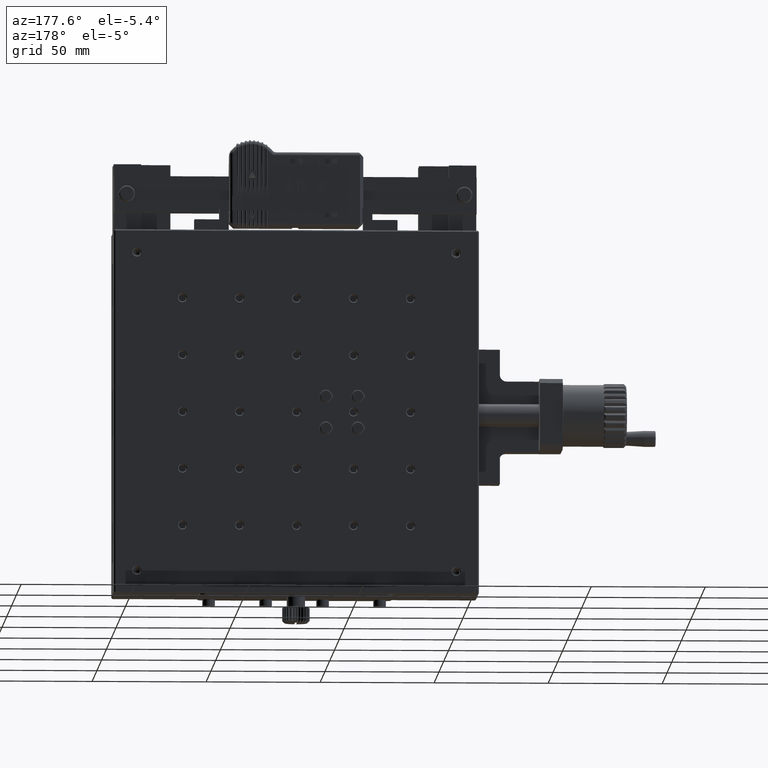
[diagram: clean part render]
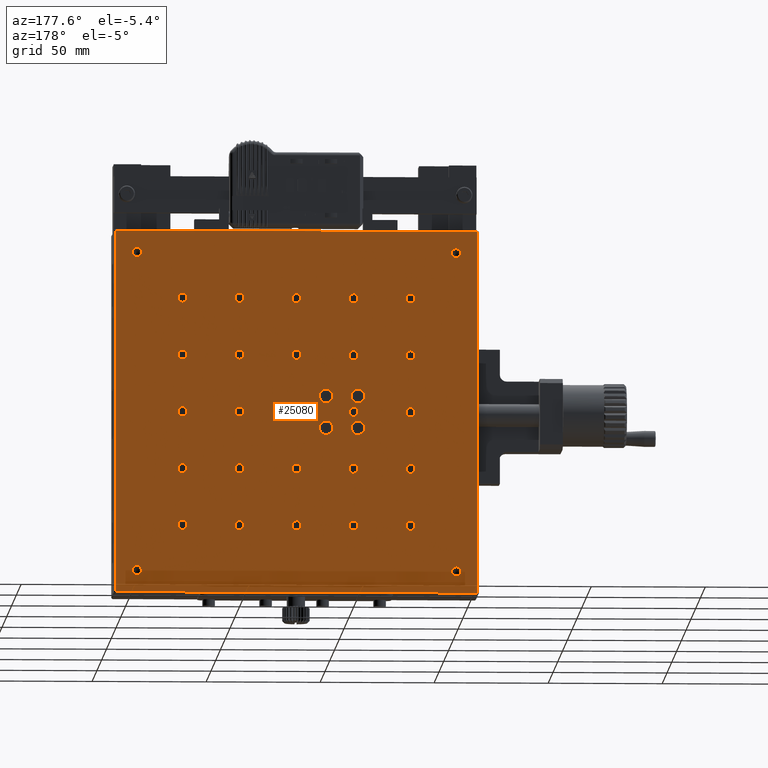
[diagram: same view with one face highlighted and labeled with its STEP entity id]
A machine part, auxiliary view. The second image highlights one B-rep face of the part: STEP entity #25080.
In plain terms, the highlighted planar face has unit normal (0, 1, 0).
Its self-contained STEP definition (entity closure, byte-faithful):
#83 = FACE_BOUND ( 'NONE', #10148, .T. ) ;
#90 = DIRECTION ( 'NONE',  ( 0.000000000000000000, 0.000000000000000000, 1.000000000000000000 ) ) ;
#546 = ORIENTED_EDGE ( 'NONE', *, *, #4016, .T. ) ;
#677 = VERTEX_POINT ( 'NONE', #42983 ) ;
#756 = CARTESIAN_POINT ( 'NONE',  ( -150.0000000000000000, 30.00000000000545697, 71.99999999988904165 ) ) ;
#1041 = AXIS2_PLACEMENT_3D ( 'NONE', #48596, #47990, #58320 ) ;
#1106 = CARTESIAN_POINT ( 'NONE',  ( -105.0000000000000000, 29.99999999994861355, 25.00000000000000000 ) ) ;
#1156 = ORIENTED_EDGE ( 'NONE', *, *, #25231, .T. ) ;
#1373 = DIRECTION ( 'NONE',  ( 0.000000000000000000, -1.000000000000000000, -0.000000000000000000 ) ) ;
#1707 = ORIENTED_EDGE ( 'NONE', *, *, #45831, .T. ) ;
#1868 = EDGE_CURVE ( 'NONE', #43418, #43418, #49684, .T. ) ;
#1989 = LINE ( 'NONE', #2591, #36957 ) ;
#2008 = LINE ( 'NONE', #21120, #16052 ) ;
#2197 = CIRCLE ( 'NONE', #26202, 2.000000000009549694 ) ;
#2447 = CARTESIAN_POINT ( 'NONE',  ( -107.0000000000000000, 30.00000000000000000, 10.00000000000000000 ) ) ;
#2590 = CARTESIAN_POINT ( 'NONE',  ( -55.00000000000000000, 30.00000000000545697, -48.00000000000181899 ) ) ;
#2591 = CARTESIAN_POINT ( 'NONE',  ( -0.5000000000000004441, 30.00000000000000000, -80.00000000000000000 ) ) ;
#2702 = CARTESIAN_POINT ( 'NONE',  ( -55.00000000000000000, 30.00000000000545697, 50.00000000000000000 ) ) ;
#3053 = ORIENTED_EDGE ( 'NONE', *, *, #45288, .T. ) ;
#3080 = VERTEX_POINT ( 'NONE', #40975 ) ;
#3086 = CARTESIAN_POINT ( 'NONE',  ( -93.00000000000000000, 30.00000000000000000, -7.000000000000000000 ) ) ;
#3123 = ORIENTED_EDGE ( 'NONE', *, *, #55918, .T. ) ;
#3169 = DIRECTION ( 'NONE',  ( -0.000000000000000000, -1.000000000000000000, -0.000000000000000000 ) ) ;
#3382 = ORIENTED_EDGE ( 'NONE', *, *, #28668, .T. ) ;
#3550 = EDGE_LOOP ( 'NONE', ( #8751 ) ) ;
#3921 = DIRECTION ( 'NONE',  ( 0.000000000000000000, 0.000000000000000000, 1.000000000000000000 ) ) ;
#3946 = VERTEX_POINT ( 'NONE', #28791 ) ;
#4016 = EDGE_CURVE ( 'NONE', #19900, #19900, #25739, .T. ) ;
#4099 = CARTESIAN_POINT ( 'NONE',  ( -130.0000000000000000, 29.99999999994861355, 0.000000000000000000 ) ) ;
#4142 = DIRECTION ( 'NONE',  ( 0.000000000000000000, 1.000000000000000000, 0.000000000000000000 ) ) ;
#4148 = CARTESIAN_POINT ( 'NONE',  ( -80.00000000000000000, 29.99999999994861355, 0.000000000000000000 ) ) ;
#4178 = ORIENTED_EDGE ( 'NONE', *, *, #38073, .T. ) ;
#4434 = FACE_BOUND ( 'NONE', #35771, .T. ) ;
#4607 = ORIENTED_EDGE ( 'NONE', *, *, #47880, .T. ) ;
#4743 = FACE_BOUND ( 'NONE', #35508, .T. ) ;
#4897 = CARTESIAN_POINT ( 'NONE',  ( -130.0000000000000000, 30.00000000000545697, 50.00000000000000000 ) ) ;
#4976 = CARTESIAN_POINT ( 'NONE',  ( -80.00000000000000000, 29.99999999994861355, -23.00000000002455636 ) ) ;
#5039 = EDGE_LOOP ( 'NONE', ( #33331 ) ) ;
#5191 = EDGE_LOOP ( 'NONE', ( #39162 ) ) ;
#5277 = DIRECTION ( 'NONE',  ( 0.000000000000000000, 0.000000000000000000, 1.000000000000000000 ) ) ;
#5741 = EDGE_CURVE ( 'NONE', #40248, #40248, #42398, .T. ) ;
#5976 = CARTESIAN_POINT ( 'NONE',  ( -105.0000000000000000, 29.99999999994861355, 2.000000000009549694 ) ) ;
#6838 = CIRCLE ( 'NONE', #21859, 1.999999999975444975 ) ;
#7005 = AXIS2_PLACEMENT_3D ( 'NONE', #15294, #48227, #5277 ) ;
#7226 = VERTEX_POINT ( 'NONE', #27255 ) ;
#7400 = DIRECTION ( 'NONE',  ( 0.000000000000000000, -1.000000000000000000, -0.000000000000000000 ) ) ;
#7501 = EDGE_LOOP ( 'NONE', ( #15891 ) ) ;
#7528 = CARTESIAN_POINT ( 'NONE',  ( -30.00000000000000000, 29.99999999994861355, 26.99999999998681233 ) ) ;
#7863 = CARTESIAN_POINT ( 'NONE',  ( -130.0000000000000000, 30.00000000000545697, -50.00000000000000000 ) ) ;
#8032 = DIRECTION ( 'NONE',  ( 0.000000000000000000, -1.000000000000000000, -0.000000000000000000 ) ) ;
#8233 = DIRECTION ( 'NONE',  ( 0.000000000000000000, -0.000000000000000000, 1.000000000000000000 ) ) ;
#8522 = VERTEX_POINT ( 'NONE', #2590 ) ;
#8751 = ORIENTED_EDGE ( 'NONE', *, *, #42827, .T. ) ;
#8823 = CARTESIAN_POINT ( 'NONE',  ( -160.0000000000000000, 30.00000000000000000, -80.00000000000000000 ) ) ;
#9138 = FACE_BOUND ( 'NONE', #58456, .T. ) ;
#9197 = ORIENTED_EDGE ( 'NONE', *, *, #12727, .T. ) ;
#9282 = DIRECTION ( 'NONE',  ( -0.000000000000000000, -1.000000000000000000, -0.000000000000000000 ) ) ;
#9738 = AXIS2_PLACEMENT_3D ( 'NONE', #1106, #58117, #15471 ) ;
#9740 = LINE ( 'NONE', #56776, #37960 ) ;
#9949 = ORIENTED_EDGE ( 'NONE', *, *, #25009, .T. ) ;
#10123 = CARTESIAN_POINT ( 'NONE',  ( -150.0000000000000000, 30.00000000000545697, 70.00000000000000000 ) ) ;
#10127 = DIRECTION ( 'NONE',  ( 0.000000000000000000, 0.000000000000000000, 1.000000000000000000 ) ) ;
#10148 = EDGE_LOOP ( 'NONE', ( #49401 ) ) ;
#10514 = DIRECTION ( 'NONE',  ( 0.000000000000000000, -1.000000000000000000, -0.000000000000000000 ) ) ;
#10712 = AXIS2_PLACEMENT_3D ( 'NONE', #7863, #17577, #26976 ) ;
#10810 = CIRCLE ( 'NONE', #34845, 2.000000000020915714 ) ;
#10996 = CIRCLE ( 'NONE', #46063, 1.999999999986810995 ) ;
#11654 = VERTEX_POINT ( 'NONE', #25772 ) ;
#11826 = EDGE_LOOP ( 'NONE', ( #43504 ) ) ;
#11892 = CARTESIAN_POINT ( 'NONE',  ( -80.00000000000000000, 30.00000000000545697, -48.00000000000181899 ) ) ;
#12075 = CARTESIAN_POINT ( 'NONE',  ( -105.0000000000000000, 30.00000000000545697, 50.00000000000000000 ) ) ;
#12283 = CARTESIAN_POINT ( 'NONE',  ( -105.0000000000000000, 30.00000000000545697, 52.00000000002091838 ) ) ;
#12333 = ORIENTED_EDGE ( 'NONE', *, *, #43384, .T. ) ;
#12440 = CARTESIAN_POINT ( 'NONE',  ( -107.0000000000000000, 30.00000000000000000, -4.000000000000000000 ) ) ;
#12727 = EDGE_CURVE ( 'NONE', #48964, #48964, #60103, .T. ) ;
#12913 = VERTEX_POINT ( 'NONE', #60583 ) ;
#12981 = ORIENTED_EDGE ( 'NONE', *, *, #31539, .T. ) ;
#13152 = VERTEX_POINT ( 'NONE', #11892 ) ;
#13231 = FACE_BOUND ( 'NONE', #49886, .T. ) ;
#13317 = DIRECTION ( 'NONE',  ( 0.000000000000000000, 0.000000000000000000, 1.000000000000000000 ) ) ;
#13612 = DIRECTION ( 'NONE',  ( -0.000000000000000000, -1.000000000000000000, -0.000000000000000000 ) ) ;
#13637 = DIRECTION ( 'NONE',  ( -0.000000000000000000, -1.000000000000000000, -0.000000000000000000 ) ) ;
#14219 = DIRECTION ( 'NONE',  ( 0.000000000000000000, 0.000000000000000000, 1.000000000000000000 ) ) ;
#14641 = DIRECTION ( 'NONE',  ( 0.000000000000000000, 0.000000000000000000, 1.000000000000000000 ) ) ;
#15128 = VERTEX_POINT ( 'NONE', #37044 ) ;
#15294 = CARTESIAN_POINT ( 'NONE',  ( -55.00000000000000000, 29.99999999994861355, 25.00000000000000000 ) ) ;
#15471 = DIRECTION ( 'NONE',  ( 0.000000000000000000, 0.000000000000000000, 1.000000000000000000 ) ) ;
#15536 = DIRECTION ( 'NONE',  ( 0.000000000000000000, 0.000000000000000000, 1.000000000000000000 ) ) ;
#15697 = CIRCLE ( 'NONE', #33600, 2.000000000009549694 ) ;
#15891 = ORIENTED_EDGE ( 'NONE', *, *, #57918, .T. ) ;
#16034 = CIRCLE ( 'NONE', #51079, 1.999999999998183675 ) ;
#16052 = VECTOR ( 'NONE', #16705, 1000.000000000000000 ) ;
#16070 = AXIS2_PLACEMENT_3D ( 'NONE', #26126, #50559, #26734 ) ;
#16122 = CIRCLE ( 'NONE', #20160, 2.000000000020915714 ) ;
#16123 = CIRCLE ( 'NONE', #21156, 2.000000000009549694 ) ;
#16124 = AXIS2_PLACEMENT_3D ( 'NONE', #30960, #49474, #21268 ) ;
#16164 = AXIS2_PLACEMENT_3D ( 'NONE', #52243, #41589, #22769 ) ;
#16479 = CARTESIAN_POINT ( 'NONE',  ( -10.00000000000000000, 30.00000000000545697, 70.00000000000000000 ) ) ;
#16705 = DIRECTION ( 'NONE',  ( 1.000000000000000000, 0.000000000000000000, -0.000000000000000000 ) ) ;
#17144 = CIRCLE ( 'NONE', #27111, 1.999999999889034985 ) ;
#17208 = CIRCLE ( 'NONE', #16164, 2.000000000009549694 ) ;
#17240 = EDGE_CURVE ( 'NONE', #50921, #50921, #25664, .T. ) ;
#17577 = DIRECTION ( 'NONE',  ( 0.000000000000000000, -1.000000000000000000, -0.000000000000000000 ) ) ;
#17678 = EDGE_LOOP ( 'NONE', ( #19070 ) ) ;
#17726 = ORIENTED_EDGE ( 'NONE', *, *, #35776, .T. ) ;
#17806 = DIRECTION ( 'NONE',  ( 0.000000000000000000, 0.000000000000000000, 1.000000000000000000 ) ) ;
#17935 = FACE_BOUND ( 'NONE', #3550, .T. ) ;
#18123 = CARTESIAN_POINT ( 'NONE',  ( -30.00000000000000000, 30.00000000000545697, -50.00000000000000000 ) ) ;
#18255 = FACE_BOUND ( 'NONE', #44383, .T. ) ;
#18818 = ORIENTED_EDGE ( 'NONE', *, *, #17240, .T. ) ;
#18842 = CIRCLE ( 'NONE', #61901, 1.999999999998183675 ) ;
#19064 = DIRECTION ( 'NONE',  ( 0.000000000000000000, -1.000000000000000000, -0.000000000000000000 ) ) ;
#19070 = ORIENTED_EDGE ( 'NONE', *, *, #54380, .T. ) ;
#19900 = VERTEX_POINT ( 'NONE', #58133 ) ;
#19993 = EDGE_LOOP ( 'NONE', ( #3382 ) ) ;
#20098 = CARTESIAN_POINT ( 'NONE',  ( -80.00000000000000000, 30.00000000000545697, 50.00000000000000000 ) ) ;
#20160 = AXIS2_PLACEMENT_3D ( 'NONE', #12075, #7400, #35291 ) ;
#20396 = DIRECTION ( 'NONE',  ( 0.000000000000000000, -1.000000000000000000, -0.000000000000000000 ) ) ;
#20399 = CARTESIAN_POINT ( 'NONE',  ( -159.5000000000000000, 30.00000000000000000, -79.50000000000000000 ) ) ;
#20487 = DIRECTION ( 'NONE',  ( 0.000000000000000000, 0.000000000000000000, 1.000000000000000000 ) ) ;
#20825 = EDGE_CURVE ( 'NONE', #27835, #43902, #9740, .T. ) ;
#20829 = CARTESIAN_POINT ( 'NONE',  ( -10.00000000000000000, 30.00000000000545697, 71.99999999988904165 ) ) ;
#21005 = CIRCLE ( 'NONE', #1041, 1.999999999975444975 ) ;
#21120 = CARTESIAN_POINT ( 'NONE',  ( -160.0000000000000000, 30.00000000000000000, 79.50000000000000000 ) ) ;
#21156 = AXIS2_PLACEMENT_3D ( 'NONE', #4099, #29361, #61168 ) ;
#21157 = CIRCLE ( 'NONE', #16124, 2.000000000009549694 ) ;
#21268 = DIRECTION ( 'NONE',  ( 0.000000000000000000, 0.000000000000000000, 1.000000000000000000 ) ) ;
#21402 = AXIS2_PLACEMENT_3D ( 'NONE', #53082, #1373, #10127 ) ;
#21504 = CARTESIAN_POINT ( 'NONE',  ( -80.00000000000000000, 29.99999999994861355, -25.00000000000000000 ) ) ;
#21603 = AXIS2_PLACEMENT_3D ( 'NONE', #35570, #13612, #13317 ) ;
#21738 = EDGE_CURVE ( 'NONE', #43902, #3946, #2008, .T. ) ;
#21859 = AXIS2_PLACEMENT_3D ( 'NONE', #30579, #8032, #27141 ) ;
#22024 = AXIS2_PLACEMENT_3D ( 'NONE', #3086, #61061, #36275 ) ;
#22568 = EDGE_CURVE ( 'NONE', #33628, #33628, #17144, .T. ) ;
#22613 = FACE_BOUND ( 'NONE', #55840, .T. ) ;
#22711 = DIRECTION ( 'NONE',  ( 0.000000000000000000, -1.000000000000000000, -0.000000000000000000 ) ) ;
#22769 = DIRECTION ( 'NONE',  ( 0.000000000000000000, 0.000000000000000000, 1.000000000000000000 ) ) ;
#22779 = CARTESIAN_POINT ( 'NONE',  ( -55.00000000000000000, 29.99999999994861355, -23.00000000002455636 ) ) ;
#22906 = AXIS2_PLACEMENT_3D ( 'NONE', #30286, #49416, #26214 ) ;
#23450 = DIRECTION ( 'NONE',  ( -1.000000000000000000, -0.000000000000000000, 0.000000000000000000 ) ) ;
#24247 = CARTESIAN_POINT ( 'NONE',  ( -80.00000000000000000, 30.00000000000545697, -50.00000000000000000 ) ) ;
#24538 = DIRECTION ( 'NONE',  ( 0.000000000000000000, -1.000000000000000000, -0.000000000000000000 ) ) ;
#25009 = EDGE_CURVE ( 'NONE', #3946, #15128, #1989, .T. ) ;
#25080 = ADVANCED_FACE ( 'NONE', ( #28551, #32960, #41748, #42984, #28259, #32647, #52395, #18255, #61803, #37949, #4434, #56472, #47668, #9138, #42068, #47372, #37336, #51464, #4743, #42673, #37627, #51773, #38261, #83, #13231, #22613, #57383, #46751, #47066, #27948, #60889, #56185, #51170, #17935 ), #37035, .T. ) ;
#25151 = AXIS2_PLACEMENT_3D ( 'NONE', #18123, #60760, #17806 ) ;
#25231 = EDGE_CURVE ( 'NONE', #11654, #11654, #21005, .T. ) ;
#25410 = ORIENTED_EDGE ( 'NONE', *, *, #5741, .T. ) ;
#25493 = EDGE_LOOP ( 'NONE', ( #12981 ) ) ;
#25629 = CIRCLE ( 'NONE', #59651, 1.999999999975444975 ) ;
#25664 = CIRCLE ( 'NONE', #29649, 1.999999999959534147 ) ;
#25739 = CIRCLE ( 'NONE', #44767, 1.999999999959534147 ) ;
#25772 = CARTESIAN_POINT ( 'NONE',  ( -105.0000000000000000, 29.99999999994861355, -23.00000000002455636 ) ) ;
#25926 = CIRCLE ( 'NONE', #32927, 3.000000000000000000 ) ;
#25985 = ORIENTED_EDGE ( 'NONE', *, *, #21738, .T. ) ;
#26126 = CARTESIAN_POINT ( 'NONE',  ( -55.00000000000000000, 29.99999999994861355, -25.00000000000000000 ) ) ;
#26179 = EDGE_CURVE ( 'NONE', #8522, #8522, #16034, .T. ) ;
#26202 = AXIS2_PLACEMENT_3D ( 'NONE', #4148, #42990, #90 ) ;
#26214 = DIRECTION ( 'NONE',  ( 0.000000000000000000, 0.000000000000000000, 1.000000000000000000 ) ) ;
#26719 = CARTESIAN_POINT ( 'NONE',  ( -55.00000000000000000, 30.00000000000545697, -50.00000000000000000 ) ) ;
#26734 = DIRECTION ( 'NONE',  ( 0.000000000000000000, 0.000000000000000000, 1.000000000000000000 ) ) ;
#26759 = CIRCLE ( 'NONE', #10712, 1.999999999998183675 ) ;
#26837 = EDGE_CURVE ( 'NONE', #32350, #32350, #21157, .T. ) ;
#26875 = VERTEX_POINT ( 'NONE', #12440 ) ;
#26930 = CIRCLE ( 'NONE', #41967, 2.000000000020915714 ) ;
#26976 = DIRECTION ( 'NONE',  ( 0.000000000000000000, 0.000000000000000000, 1.000000000000000000 ) ) ;
#27004 = EDGE_CURVE ( 'NONE', #12913, #12913, #35136, .T. ) ;
#27030 = DIRECTION ( 'NONE',  ( -0.000000000000000000, 0.000000000000000000, -1.000000000000000000 ) ) ;
#27111 = AXIS2_PLACEMENT_3D ( 'NONE', #10123, #61269, #29240 ) ;
#27141 = DIRECTION ( 'NONE',  ( 0.000000000000000000, 0.000000000000000000, 1.000000000000000000 ) ) ;
#27255 = CARTESIAN_POINT ( 'NONE',  ( -30.00000000000000000, 30.00000000000545697, -48.00000000000181899 ) ) ;
#27389 = VECTOR ( 'NONE', #23450, 1000.000000000000000 ) ;
#27554 = CARTESIAN_POINT ( 'NONE',  ( -93.00000000000000000, 30.00000000000000000, -4.000000000000000000 ) ) ;
#27751 = DIRECTION ( 'NONE',  ( 0.000000000000000000, 0.000000000000000000, 1.000000000000000000 ) ) ;
#27757 = CARTESIAN_POINT ( 'NONE',  ( -105.0000000000000000, 30.00000000000545697, -50.00000000000000000 ) ) ;
#27835 = VERTEX_POINT ( 'NONE', #20399 ) ;
#27948 = FACE_BOUND ( 'NONE', #59393, .T. ) ;
#28259 = FACE_BOUND ( 'NONE', #44850, .T. ) ;
#28551 = FACE_OUTER_BOUND ( 'NONE', #56444, .T. ) ;
#28668 = EDGE_CURVE ( 'NONE', #41747, #41747, #16122, .T. ) ;
#28791 = CARTESIAN_POINT ( 'NONE',  ( -0.4999999999999900080, 30.00000000000000000, 79.50000000000001421 ) ) ;
#29072 = EDGE_LOOP ( 'NONE', ( #30525 ) ) ;
#29101 = VERTEX_POINT ( 'NONE', #42596 ) ;
#29240 = DIRECTION ( 'NONE',  ( 0.000000000000000000, 0.000000000000000000, 1.000000000000000000 ) ) ;
#29361 = DIRECTION ( 'NONE',  ( 0.000000000000000000, -1.000000000000000000, -0.000000000000000000 ) ) ;
#29521 = CARTESIAN_POINT ( 'NONE',  ( -105.0000000000000000, 30.00000000000545697, -48.00000000000181899 ) ) ;
#29649 = AXIS2_PLACEMENT_3D ( 'NONE', #43802, #19064, #14641 ) ;
#30286 = CARTESIAN_POINT ( 'NONE',  ( -107.0000000000000000, 30.00000000000000000, -7.000000000000000000 ) ) ;
#30525 = ORIENTED_EDGE ( 'NONE', *, *, #22568, .T. ) ;
#30579 = CARTESIAN_POINT ( 'NONE',  ( -130.0000000000000000, 29.99999999994861355, -25.00000000000000000 ) ) ;
#30960 = CARTESIAN_POINT ( 'NONE',  ( -55.00000000000000000, 29.99999999994861355, 0.000000000000000000 ) ) ;
#31332 = VERTEX_POINT ( 'NONE', #55465 ) ;
#31379 = ORIENTED_EDGE ( 'NONE', *, *, #44035, .T. ) ;
#31539 = EDGE_CURVE ( 'NONE', #57998, #57998, #2197, .T. ) ;
#31611 = ORIENTED_EDGE ( 'NONE', *, *, #60782, .T. ) ;
#32350 = VERTEX_POINT ( 'NONE', #51463 ) ;
#32389 = ORIENTED_EDGE ( 'NONE', *, *, #56020, .T. ) ;
#32647 = FACE_BOUND ( 'NONE', #52860, .T. ) ;
#32700 = ORIENTED_EDGE ( 'NONE', *, *, #49378, .T. ) ;
#32927 = AXIS2_PLACEMENT_3D ( 'NONE', #50109, #35361, #58880 ) ;
#32960 = FACE_BOUND ( 'NONE', #56394, .T. ) ;
#33331 = ORIENTED_EDGE ( 'NONE', *, *, #27004, .T. ) ;
#33385 = DIRECTION ( 'NONE',  ( 0.000000000000000000, 0.000000000000000000, 1.000000000000000000 ) ) ;
#33386 = DIRECTION ( 'NONE',  ( 0.000000000000000000, -1.000000000000000000, -0.000000000000000000 ) ) ;
#33600 = AXIS2_PLACEMENT_3D ( 'NONE', #57555, #10514, #15536 ) ;
#33628 = VERTEX_POINT ( 'NONE', #756 ) ;
#33792 = VERTEX_POINT ( 'NONE', #37260 ) ;
#33927 = EDGE_LOOP ( 'NONE', ( #32700 ) ) ;
#33998 = CIRCLE ( 'NONE', #22024, 3.000000000000000000 ) ;
#34478 = VERTEX_POINT ( 'NONE', #53613 ) ;
#34540 = AXIS2_PLACEMENT_3D ( 'NONE', #20098, #20396, #39490 ) ;
#34753 = ORIENTED_EDGE ( 'NONE', *, *, #40762, .T. ) ;
#34845 = AXIS2_PLACEMENT_3D ( 'NONE', #4897, #53166, #43148 ) ;
#35110 = VERTEX_POINT ( 'NONE', #40122 ) ;
#35136 = CIRCLE ( 'NONE', #7005, 1.999999999986810995 ) ;
#35291 = DIRECTION ( 'NONE',  ( 0.000000000000000000, 0.000000000000000000, 1.000000000000000000 ) ) ;
#35293 = DIRECTION ( 'NONE',  ( 0.000000000000000000, 0.000000000000000000, 1.000000000000000000 ) ) ;
#35357 = CARTESIAN_POINT ( 'NONE',  ( -150.0000000000000000, 29.99999999994861355, -70.00000000000000000 ) ) ;
#35361 = DIRECTION ( 'NONE',  ( -0.000000000000000000, -1.000000000000000000, -0.000000000000000000 ) ) ;
#35508 = EDGE_LOOP ( 'NONE', ( #34753 ) ) ;
#35570 = CARTESIAN_POINT ( 'NONE',  ( -80.00000000000000000, 29.99999999994861355, 25.00000000000000000 ) ) ;
#35771 = EDGE_LOOP ( 'NONE', ( #42226 ) ) ;
#35776 = EDGE_CURVE ( 'NONE', #677, #677, #56561, .T. ) ;
#35900 = DIRECTION ( 'NONE',  ( 0.000000000000000000, -1.000000000000000000, -0.000000000000000000 ) ) ;
#36275 = DIRECTION ( 'NONE',  ( 0.000000000000000000, 0.000000000000000000, 1.000000000000000000 ) ) ;
#36333 = VERTEX_POINT ( 'NONE', #27554 ) ;
#36515 = EDGE_LOOP ( 'NONE', ( #17726 ) ) ;
#36543 = ORIENTED_EDGE ( 'NONE', *, *, #26837, .T. ) ;
#36571 = VERTEX_POINT ( 'NONE', #45082 ) ;
#36823 = EDGE_LOOP ( 'NONE', ( #32389 ) ) ;
#36957 = VECTOR ( 'NONE', #27030, 1000.000000000000000 ) ;
#37035 = PLANE ( 'NONE',  #50003 ) ;
#37044 = CARTESIAN_POINT ( 'NONE',  ( -0.4999999999999950040, 30.00000000000000000, -79.50000000000001421 ) ) ;
#37198 = VERTEX_POINT ( 'NONE', #22779 ) ;
#37260 = CARTESIAN_POINT ( 'NONE',  ( -30.00000000000000000, 29.99999999994861355, 2.000000000009549694 ) ) ;
#37336 = FACE_BOUND ( 'NONE', #42466, .T. ) ;
#37420 = EDGE_CURVE ( 'NONE', #35110, #35110, #56742, .T. ) ;
#37627 = FACE_BOUND ( 'NONE', #36515, .T. ) ;
#37744 = ORIENTED_EDGE ( 'NONE', *, *, #50399, .T. ) ;
#37865 = VERTEX_POINT ( 'NONE', #47295 ) ;
#37949 = FACE_BOUND ( 'NONE', #56459, .T. ) ;
#37960 = VECTOR ( 'NONE', #47071, 1000.000000000000000 ) ;
#38073 = EDGE_CURVE ( 'NONE', #49844, #49844, #15697, .T. ) ;
#38261 = FACE_BOUND ( 'NONE', #42306, .T. ) ;
#38321 = EDGE_CURVE ( 'NONE', #44520, #44520, #25629, .T. ) ;
#39162 = ORIENTED_EDGE ( 'NONE', *, *, #41203, .T. ) ;
#39189 = EDGE_LOOP ( 'NONE', ( #54006 ) ) ;
#39419 = VERTEX_POINT ( 'NONE', #49765 ) ;
#39490 = DIRECTION ( 'NONE',  ( 0.000000000000000000, 0.000000000000000000, 1.000000000000000000 ) ) ;
#39684 = DIRECTION ( 'NONE',  ( 0.000000000000000000, 0.000000000000000000, 1.000000000000000000 ) ) ;
#39742 = DIRECTION ( 'NONE',  ( 0.000000000000000000, -1.000000000000000000, -0.000000000000000000 ) ) ;
#39744 = EDGE_CURVE ( 'NONE', #34478, #34478, #61805, .T. ) ;
#40122 = CARTESIAN_POINT ( 'NONE',  ( -130.0000000000000000, 29.99999999994861355, 26.99999999998681233 ) ) ;
#40147 = AXIS2_PLACEMENT_3D ( 'NONE', #21504, #35900, #39684 ) ;
#40248 = VERTEX_POINT ( 'NONE', #46210 ) ;
#40762 = EDGE_CURVE ( 'NONE', #31332, #31332, #10810, .T. ) ;
#40824 = DIRECTION ( 'NONE',  ( 0.000000000000000000, -1.000000000000000000, -0.000000000000000000 ) ) ;
#40975 = CARTESIAN_POINT ( 'NONE',  ( -55.00000000000000000, 30.00000000000545697, 52.00000000002091838 ) ) ;
#41203 = EDGE_CURVE ( 'NONE', #13152, #13152, #18842, .T. ) ;
#41589 = DIRECTION ( 'NONE',  ( 0.000000000000000000, -1.000000000000000000, -0.000000000000000000 ) ) ;
#41621 = CIRCLE ( 'NONE', #21603, 1.999999999986810995 ) ;
#41747 = VERTEX_POINT ( 'NONE', #12283 ) ;
#41748 = FACE_BOUND ( 'NONE', #36823, .T. ) ;
#41967 = AXIS2_PLACEMENT_3D ( 'NONE', #2702, #55976, #27751 ) ;
#42068 = FACE_BOUND ( 'NONE', #25493, .T. ) ;
#42226 = ORIENTED_EDGE ( 'NONE', *, *, #45372, .T. ) ;
#42230 = CARTESIAN_POINT ( 'NONE',  ( -130.0000000000000000, 29.99999999994861355, -23.00000000002455636 ) ) ;
#42306 = EDGE_LOOP ( 'NONE', ( #37744 ) ) ;
#42398 = CIRCLE ( 'NONE', #21402, 2.000000000020915714 ) ;
#42466 = EDGE_LOOP ( 'NONE', ( #1707 ) ) ;
#42596 = CARTESIAN_POINT ( 'NONE',  ( -93.00000000000000000, 30.00000000000000000, 10.00000000000000000 ) ) ;
#42673 = FACE_BOUND ( 'NONE', #19993, .T. ) ;
#42827 = EDGE_CURVE ( 'NONE', #36333, #36333, #33998, .T. ) ;
#42983 = CARTESIAN_POINT ( 'NONE',  ( -80.00000000000000000, 30.00000000000545697, 52.00000000002091838 ) ) ;
#42984 = FACE_BOUND ( 'NONE', #5191, .T. ) ;
#42990 = DIRECTION ( 'NONE',  ( 0.000000000000000000, -1.000000000000000000, -0.000000000000000000 ) ) ;
#43148 = DIRECTION ( 'NONE',  ( 0.000000000000000000, 0.000000000000000000, 1.000000000000000000 ) ) ;
#43384 = EDGE_CURVE ( 'NONE', #51086, #51086, #10996, .T. ) ;
#43418 = VERTEX_POINT ( 'NONE', #20829 ) ;
#43504 = ORIENTED_EDGE ( 'NONE', *, *, #1868, .T. ) ;
#43802 = CARTESIAN_POINT ( 'NONE',  ( -10.00000000000000000, 29.99999999994861355, -70.00000000000000000 ) ) ;
#43902 = VERTEX_POINT ( 'NONE', #46029 ) ;
#44035 = EDGE_CURVE ( 'NONE', #7226, #7226, #58162, .T. ) ;
#44383 = EDGE_LOOP ( 'NONE', ( #9197 ) ) ;
#44520 = VERTEX_POINT ( 'NONE', #45154 ) ;
#44682 = AXIS2_PLACEMENT_3D ( 'NONE', #16479, #55034, #35293 ) ;
#44767 = AXIS2_PLACEMENT_3D ( 'NONE', #35357, #39742, #50105 ) ;
#44850 = EDGE_LOOP ( 'NONE', ( #49963 ) ) ;
#45082 = CARTESIAN_POINT ( 'NONE',  ( -130.0000000000000000, 30.00000000000545697, -48.00000000000181899 ) ) ;
#45154 = CARTESIAN_POINT ( 'NONE',  ( -30.00000000000000000, 29.99999999994861355, -23.00000000002455636 ) ) ;
#45243 = DIRECTION ( 'NONE',  ( 0.000000000000000000, 0.000000000000000000, 1.000000000000000000 ) ) ;
#45288 = EDGE_CURVE ( 'NONE', #37865, #37865, #16123, .T. ) ;
#45372 = EDGE_CURVE ( 'NONE', #51687, #51687, #59175, .T. ) ;
#45831 = EDGE_CURVE ( 'NONE', #33792, #33792, #17208, .T. ) ;
#46029 = CARTESIAN_POINT ( 'NONE',  ( -159.5000000000000000, 30.00000000000000000, 79.50000000000001421 ) ) ;
#46063 = AXIS2_PLACEMENT_3D ( 'NONE', #46101, #3169, #20487 ) ;
#46101 = CARTESIAN_POINT ( 'NONE',  ( -30.00000000000000000, 29.99999999994861355, 25.00000000000000000 ) ) ;
#46210 = CARTESIAN_POINT ( 'NONE',  ( -30.00000000000000000, 30.00000000000545697, 52.00000000002091838 ) ) ;
#46751 = FACE_BOUND ( 'NONE', #29072, .T. ) ;
#46820 = CARTESIAN_POINT ( 'NONE',  ( -10.00000000000000000, 29.99999999994861355, -68.00000000004047251 ) ) ;
#46910 = VERTEX_POINT ( 'NONE', #42230 ) ;
#47066 = FACE_BOUND ( 'NONE', #50593, .T. ) ;
#47071 = DIRECTION ( 'NONE',  ( 0.000000000000000000, -0.000000000000000000, 1.000000000000000000 ) ) ;
#47295 = CARTESIAN_POINT ( 'NONE',  ( -130.0000000000000000, 29.99999999994861355, 2.000000000009549694 ) ) ;
#47372 = FACE_BOUND ( 'NONE', #56266, .T. ) ;
#47668 = FACE_BOUND ( 'NONE', #48619, .T. ) ;
#47797 = DIRECTION ( 'NONE',  ( 0.000000000000000000, 0.000000000000000000, 1.000000000000000000 ) ) ;
#47880 = EDGE_CURVE ( 'NONE', #15128, #27835, #51672, .T. ) ;
#47889 = EDGE_LOOP ( 'NONE', ( #12333 ) ) ;
#47990 = DIRECTION ( 'NONE',  ( 0.000000000000000000, -1.000000000000000000, -0.000000000000000000 ) ) ;
#48227 = DIRECTION ( 'NONE',  ( -0.000000000000000000, -1.000000000000000000, -0.000000000000000000 ) ) ;
#48596 = CARTESIAN_POINT ( 'NONE',  ( -105.0000000000000000, 29.99999999994861355, -25.00000000000000000 ) ) ;
#48619 = EDGE_LOOP ( 'NONE', ( #48862 ) ) ;
#48744 = CARTESIAN_POINT ( 'NONE',  ( -130.0000000000000000, 29.99999999994861355, 25.00000000000000000 ) ) ;
#48862 = ORIENTED_EDGE ( 'NONE', *, *, #38321, .T. ) ;
#48964 = VERTEX_POINT ( 'NONE', #29521 ) ;
#49148 = CIRCLE ( 'NONE', #16070, 1.999999999975444975 ) ;
#49378 = EDGE_CURVE ( 'NONE', #29101, #29101, #59555, .T. ) ;
#49401 = ORIENTED_EDGE ( 'NONE', *, *, #39744, .T. ) ;
#49416 = DIRECTION ( 'NONE',  ( -0.000000000000000000, -1.000000000000000000, -0.000000000000000000 ) ) ;
#49474 = DIRECTION ( 'NONE',  ( 0.000000000000000000, -1.000000000000000000, -0.000000000000000000 ) ) ;
#49684 = CIRCLE ( 'NONE', #44682, 1.999999999889034985 ) ;
#49765 = CARTESIAN_POINT ( 'NONE',  ( -80.00000000000000000, 29.99999999994861355, 26.99999999998681233 ) ) ;
#49844 = VERTEX_POINT ( 'NONE', #5976 ) ;
#49886 = EDGE_LOOP ( 'NONE', ( #53282 ) ) ;
#49963 = ORIENTED_EDGE ( 'NONE', *, *, #26179, .T. ) ;
#50003 = AXIS2_PLACEMENT_3D ( 'NONE', #8823, #4142, #8233 ) ;
#50105 = DIRECTION ( 'NONE',  ( 0.000000000000000000, 0.000000000000000000, 1.000000000000000000 ) ) ;
#50109 = CARTESIAN_POINT ( 'NONE',  ( -107.0000000000000000, 30.00000000000000000, 7.000000000000000000 ) ) ;
#50399 = EDGE_CURVE ( 'NONE', #39419, #39419, #41621, .T. ) ;
#50559 = DIRECTION ( 'NONE',  ( 0.000000000000000000, -1.000000000000000000, -0.000000000000000000 ) ) ;
#50593 = EDGE_LOOP ( 'NONE', ( #546 ) ) ;
#50921 = VERTEX_POINT ( 'NONE', #46820 ) ;
#51079 = AXIS2_PLACEMENT_3D ( 'NONE', #26719, #40824, #45243 ) ;
#51086 = VERTEX_POINT ( 'NONE', #7528 ) ;
#51170 = FACE_BOUND ( 'NONE', #57995, .T. ) ;
#51463 = CARTESIAN_POINT ( 'NONE',  ( -55.00000000000000000, 29.99999999994861355, 2.000000000009549694 ) ) ;
#51464 = FACE_BOUND ( 'NONE', #47889, .T. ) ;
#51672 = LINE ( 'NONE', #55761, #27389 ) ;
#51687 = VERTEX_POINT ( 'NONE', #4976 ) ;
#51773 = FACE_BOUND ( 'NONE', #5039, .T. ) ;
#51955 = CIRCLE ( 'NONE', #22906, 3.000000000000000000 ) ;
#52243 = CARTESIAN_POINT ( 'NONE',  ( -30.00000000000000000, 29.99999999994861355, 0.000000000000000000 ) ) ;
#52395 = FACE_BOUND ( 'NONE', #58490, .T. ) ;
#52486 = CARTESIAN_POINT ( 'NONE',  ( -30.00000000000000000, 29.99999999994861355, -25.00000000000000000 ) ) ;
#52725 = AXIS2_PLACEMENT_3D ( 'NONE', #48744, #9282, #52840 ) ;
#52817 = CARTESIAN_POINT ( 'NONE',  ( -93.00000000000000000, 30.00000000000000000, 7.000000000000000000 ) ) ;
#52840 = DIRECTION ( 'NONE',  ( 0.000000000000000000, 0.000000000000000000, 1.000000000000000000 ) ) ;
#52860 = EDGE_LOOP ( 'NONE', ( #31379 ) ) ;
#53082 = CARTESIAN_POINT ( 'NONE',  ( -30.00000000000000000, 30.00000000000545697, 50.00000000000000000 ) ) ;
#53166 = DIRECTION ( 'NONE',  ( 0.000000000000000000, -1.000000000000000000, -0.000000000000000000 ) ) ;
#53282 = ORIENTED_EDGE ( 'NONE', *, *, #37420, .T. ) ;
#53613 = CARTESIAN_POINT ( 'NONE',  ( -105.0000000000000000, 29.99999999994861355, 26.99999999998681233 ) ) ;
#54006 = ORIENTED_EDGE ( 'NONE', *, *, #58382, .T. ) ;
#54098 = AXIS2_PLACEMENT_3D ( 'NONE', #27757, #33386, #47797 ) ;
#54120 = ORIENTED_EDGE ( 'NONE', *, *, #20825, .T. ) ;
#54380 = EDGE_CURVE ( 'NONE', #36571, #36571, #26759, .T. ) ;
#54550 = AXIS2_PLACEMENT_3D ( 'NONE', #52817, #13637, #33385 ) ;
#54785 = VERTEX_POINT ( 'NONE', #2447 ) ;
#55034 = DIRECTION ( 'NONE',  ( 0.000000000000000000, -1.000000000000000000, -0.000000000000000000 ) ) ;
#55465 = CARTESIAN_POINT ( 'NONE',  ( -130.0000000000000000, 30.00000000000545697, 52.00000000002091838 ) ) ;
#55761 = CARTESIAN_POINT ( 'NONE',  ( -160.0000000000000000, 30.00000000000000000, -79.50000000000000000 ) ) ;
#55840 = EDGE_LOOP ( 'NONE', ( #4178 ) ) ;
#55918 = EDGE_CURVE ( 'NONE', #26875, #26875, #51955, .T. ) ;
#55976 = DIRECTION ( 'NONE',  ( 0.000000000000000000, -1.000000000000000000, -0.000000000000000000 ) ) ;
#56020 = EDGE_CURVE ( 'NONE', #3080, #3080, #26930, .T. ) ;
#56185 = FACE_BOUND ( 'NONE', #7501, .T. ) ;
#56266 = EDGE_LOOP ( 'NONE', ( #36543 ) ) ;
#56394 = EDGE_LOOP ( 'NONE', ( #25410 ) ) ;
#56444 = EDGE_LOOP ( 'NONE', ( #4607, #54120, #25985, #9949 ) ) ;
#56459 = EDGE_LOOP ( 'NONE', ( #1156 ) ) ;
#56472 = FACE_BOUND ( 'NONE', #39189, .T. ) ;
#56561 = CIRCLE ( 'NONE', #34540, 2.000000000020915714 ) ;
#56742 = CIRCLE ( 'NONE', #52725, 1.999999999986810995 ) ;
#56776 = CARTESIAN_POINT ( 'NONE',  ( -159.5000000000000000, 30.00000000000000000, -80.00000000000000000 ) ) ;
#57383 = FACE_BOUND ( 'NONE', #11826, .T. ) ;
#57555 = CARTESIAN_POINT ( 'NONE',  ( -105.0000000000000000, 29.99999999994861355, 0.000000000000000000 ) ) ;
#57688 = CARTESIAN_POINT ( 'NONE',  ( -80.00000000000000000, 29.99999999994861355, 2.000000000009549694 ) ) ;
#57918 = EDGE_CURVE ( 'NONE', #54785, #54785, #25926, .T. ) ;
#57995 = EDGE_LOOP ( 'NONE', ( #3123 ) ) ;
#57998 = VERTEX_POINT ( 'NONE', #57688 ) ;
#58117 = DIRECTION ( 'NONE',  ( -0.000000000000000000, -1.000000000000000000, -0.000000000000000000 ) ) ;
#58133 = CARTESIAN_POINT ( 'NONE',  ( -150.0000000000000000, 29.99999999994861355, -68.00000000004047251 ) ) ;
#58162 = CIRCLE ( 'NONE', #25151, 1.999999999998183675 ) ;
#58320 = DIRECTION ( 'NONE',  ( 0.000000000000000000, 0.000000000000000000, 1.000000000000000000 ) ) ;
#58382 = EDGE_CURVE ( 'NONE', #37198, #37198, #49148, .T. ) ;
#58456 = EDGE_LOOP ( 'NONE', ( #3053 ) ) ;
#58490 = EDGE_LOOP ( 'NONE', ( #31611 ) ) ;
#58880 = DIRECTION ( 'NONE',  ( 0.000000000000000000, 0.000000000000000000, 1.000000000000000000 ) ) ;
#59175 = CIRCLE ( 'NONE', #40147, 1.999999999975444975 ) ;
#59393 = EDGE_LOOP ( 'NONE', ( #18818 ) ) ;
#59555 = CIRCLE ( 'NONE', #54550, 3.000000000000000000 ) ;
#59651 = AXIS2_PLACEMENT_3D ( 'NONE', #52486, #22711, #3921 ) ;
#60103 = CIRCLE ( 'NONE', #54098, 1.999999999998183675 ) ;
#60583 = CARTESIAN_POINT ( 'NONE',  ( -55.00000000000000000, 29.99999999994861355, 26.99999999998681233 ) ) ;
#60760 = DIRECTION ( 'NONE',  ( 0.000000000000000000, -1.000000000000000000, -0.000000000000000000 ) ) ;
#60782 = EDGE_CURVE ( 'NONE', #46910, #46910, #6838, .T. ) ;
#60889 = FACE_BOUND ( 'NONE', #33927, .T. ) ;
#61061 = DIRECTION ( 'NONE',  ( -0.000000000000000000, -1.000000000000000000, -0.000000000000000000 ) ) ;
#61168 = DIRECTION ( 'NONE',  ( 0.000000000000000000, 0.000000000000000000, 1.000000000000000000 ) ) ;
#61269 = DIRECTION ( 'NONE',  ( 0.000000000000000000, -1.000000000000000000, -0.000000000000000000 ) ) ;
#61803 = FACE_BOUND ( 'NONE', #17678, .T. ) ;
#61805 = CIRCLE ( 'NONE', #9738, 1.999999999986810995 ) ;
#61901 = AXIS2_PLACEMENT_3D ( 'NONE', #24247, #24538, #14219 ) ;